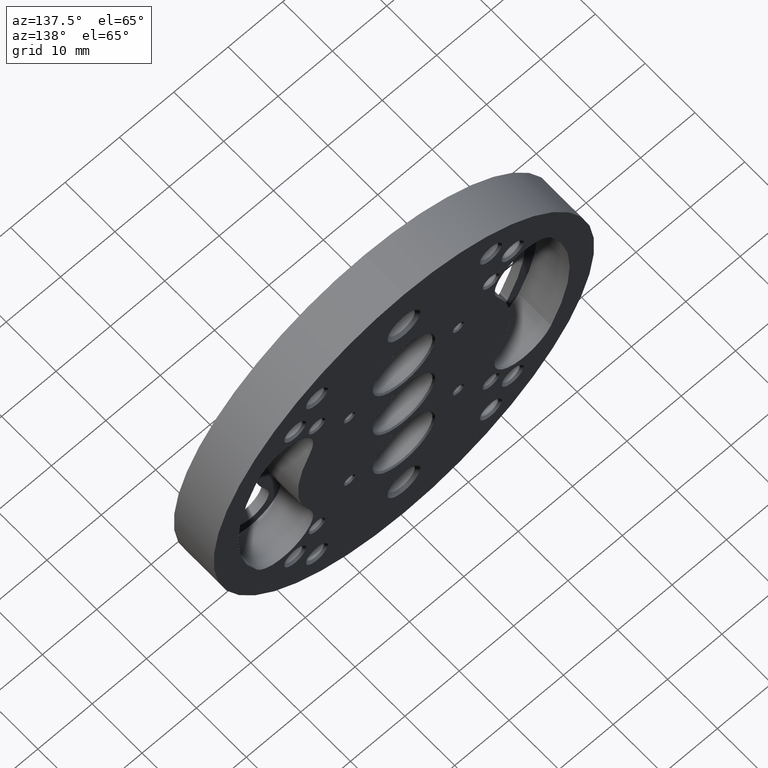
[diagram: clean part render]
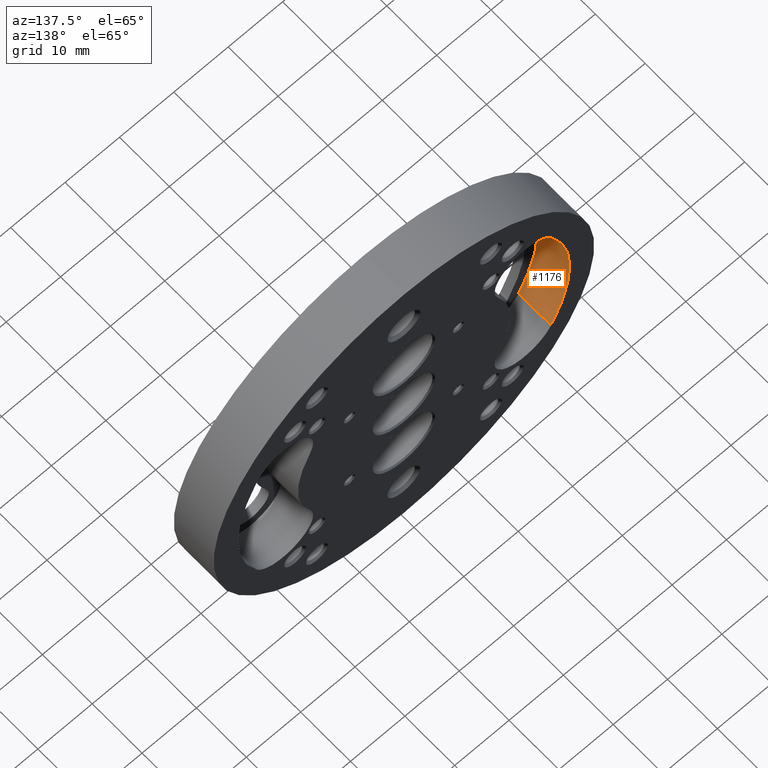
[diagram: same view with one face highlighted and labeled with its STEP entity id]
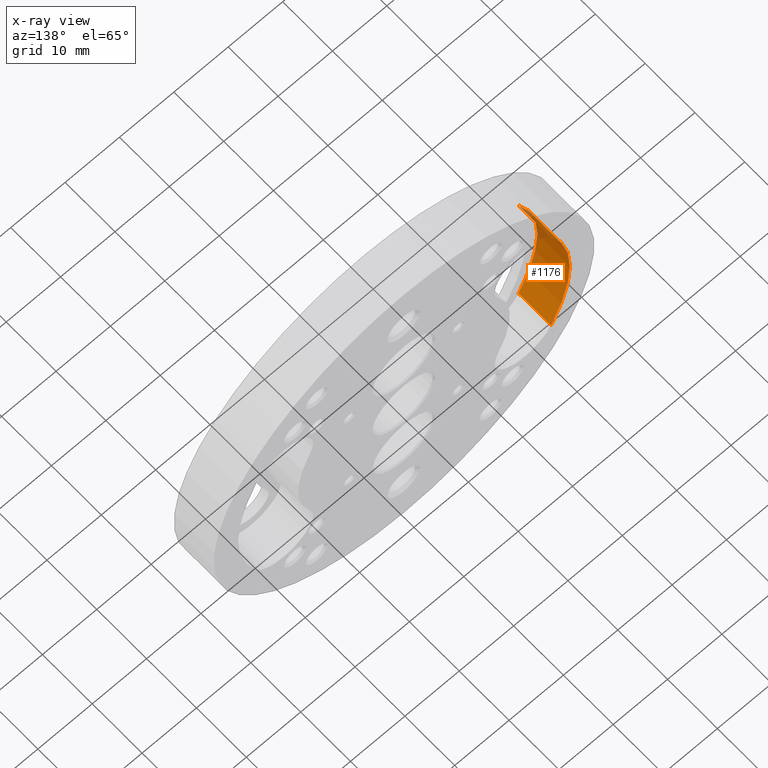
[diagram: x-ray of the same camera — body ghosted, the highlighted face saturated]
A machine part, auxiliary view. The second image highlights one B-rep face of the part: STEP entity #1176.
The next image is the same camera in x-ray: the body ghosted, the highlighted face saturated — about 7% of this face is hidden behind the body in this view.
In plain terms, the highlighted cylindrical surface (partial cylindrical patch) has radius 30.5 mm, axis along (-0, 1, -0).
Its self-contained STEP definition (entity closure, byte-faithful):
#4 = ORIENTED_EDGE ( 'NONE', *, *, #1141, .T. ) ;
#67 = CARTESIAN_POINT ( 'NONE',  ( -27.05383041193573490, 1.500000000000000444, 14.08333270366857093 ) ) ;
#117 = VECTOR ( 'NONE', #1275, 1000.000000000000000 ) ;
#194 = CARTESIAN_POINT ( 'NONE',  ( -27.05383041193573135, 1.500000000000000444, -14.08333270366857448 ) ) ;
#231 = EDGE_CURVE ( 'NONE', #589, #451, #688, .T. ) ;
#301 = VERTEX_POINT ( 'NONE', #923 ) ;
#383 = LINE ( 'NONE', #67, #117 ) ;
#414 = CIRCLE ( 'NONE', #1853, 30.49999999999999289 ) ;
#448 = FACE_OUTER_BOUND ( 'NONE', #1087, .T. ) ;
#451 = VERTEX_POINT ( 'NONE', #1099 ) ;
#555 = AXIS2_PLACEMENT_3D ( 'NONE', #737, #1336, #932 ) ;
#589 = VERTEX_POINT ( 'NONE', #1623 ) ;
#662 = VECTOR ( 'NONE', #807, 1000.000000000000000 ) ;
#688 = CIRCLE ( 'NONE', #555, 30.49999999999999289 ) ;
#737 = CARTESIAN_POINT ( 'NONE',  ( 0.000000000000000000, 8.000000000000000000, 0.000000000000000000 ) ) ;
#763 = CARTESIAN_POINT ( 'NONE',  ( 0.000000000000000000, 1.500000000000000444, 0.000000000000000000 ) ) ;
#807 = DIRECTION ( 'NONE',  ( -0.000000000000000000, 1.000000000000000000, -0.000000000000000000 ) ) ;
#856 = CARTESIAN_POINT ( 'NONE',  ( -27.05383041193573490, 1.500000000000000444, 14.08333270366857093 ) ) ;
#874 = DIRECTION ( 'NONE',  ( 0.000000000000000000, 0.000000000000000000, 1.000000000000000000 ) ) ;
#923 = CARTESIAN_POINT ( 'NONE',  ( -27.05383041193573135, 1.500000000000000444, -14.08333270366857448 ) ) ;
#932 = DIRECTION ( 'NONE',  ( 0.000000000000000000, 0.000000000000000000, 1.000000000000000000 ) ) ;
#938 = ORIENTED_EDGE ( 'NONE', *, *, #231, .F. ) ;
#950 = EDGE_CURVE ( 'NONE', #301, #451, #1559, .T. ) ;
#1001 = EDGE_CURVE ( 'NONE', #1511, #589, #383, .T. ) ;
#1087 = EDGE_LOOP ( 'NONE', ( #938, #1329, #4, #1196 ) ) ;
#1099 = CARTESIAN_POINT ( 'NONE',  ( -27.05383041193573135, 8.000000000000000000, -14.08333270366857448 ) ) ;
#1141 = EDGE_CURVE ( 'NONE', #1511, #301, #414, .T. ) ;
#1176 = ADVANCED_FACE ( 'NONE', ( #448 ), #1790, .F. ) ;
#1196 = ORIENTED_EDGE ( 'NONE', *, *, #950, .T. ) ;
#1268 = AXIS2_PLACEMENT_3D ( 'NONE', #763, #1965, #874 ) ;
#1275 = DIRECTION ( 'NONE',  ( -0.000000000000000000, 1.000000000000000000, -0.000000000000000000 ) ) ;
#1329 = ORIENTED_EDGE ( 'NONE', *, *, #1001, .F. ) ;
#1336 = DIRECTION ( 'NONE',  ( -0.000000000000000000, -1.000000000000000000, -0.000000000000000000 ) ) ;
#1494 = CARTESIAN_POINT ( 'NONE',  ( 0.000000000000000000, 1.500000000000000444, 0.000000000000000000 ) ) ;
#1511 = VERTEX_POINT ( 'NONE', #856 ) ;
#1559 = LINE ( 'NONE', #194, #662 ) ;
#1623 = CARTESIAN_POINT ( 'NONE',  ( -27.05383041193573490, 8.000000000000000000, 14.08333270366857093 ) ) ;
#1790 = CYLINDRICAL_SURFACE ( 'NONE', #1268, 30.49999999999999289 ) ;
#1853 = AXIS2_PLACEMENT_3D ( 'NONE', #1494, #1955, #1973 ) ;
#1955 = DIRECTION ( 'NONE',  ( -0.000000000000000000, -1.000000000000000000, -0.000000000000000000 ) ) ;
#1965 = DIRECTION ( 'NONE',  ( -0.000000000000000000, 1.000000000000000000, -0.000000000000000000 ) ) ;
#1973 = DIRECTION ( 'NONE',  ( 0.000000000000000000, 0.000000000000000000, 1.000000000000000000 ) ) ;